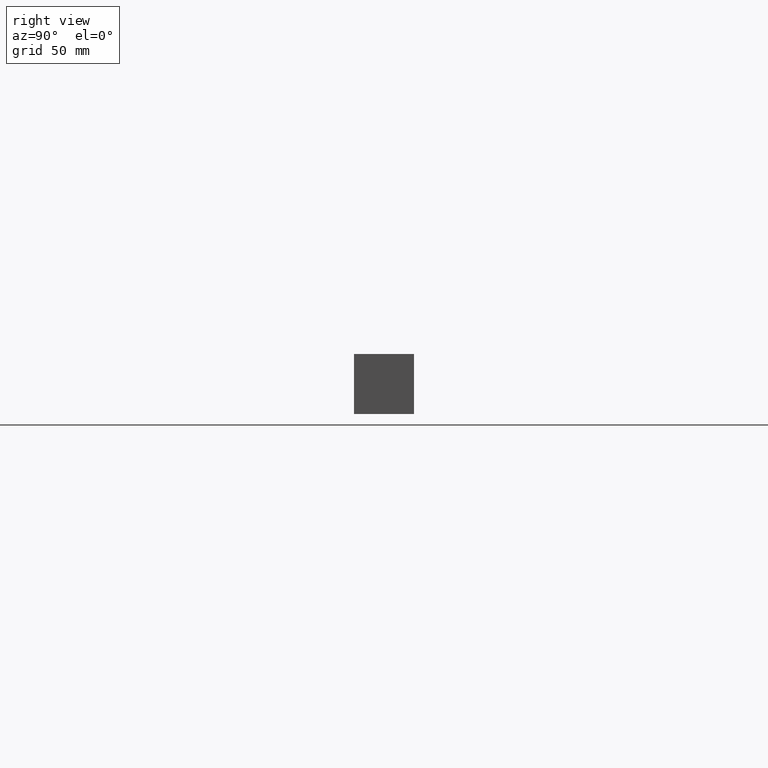
[diagram: clean part render]
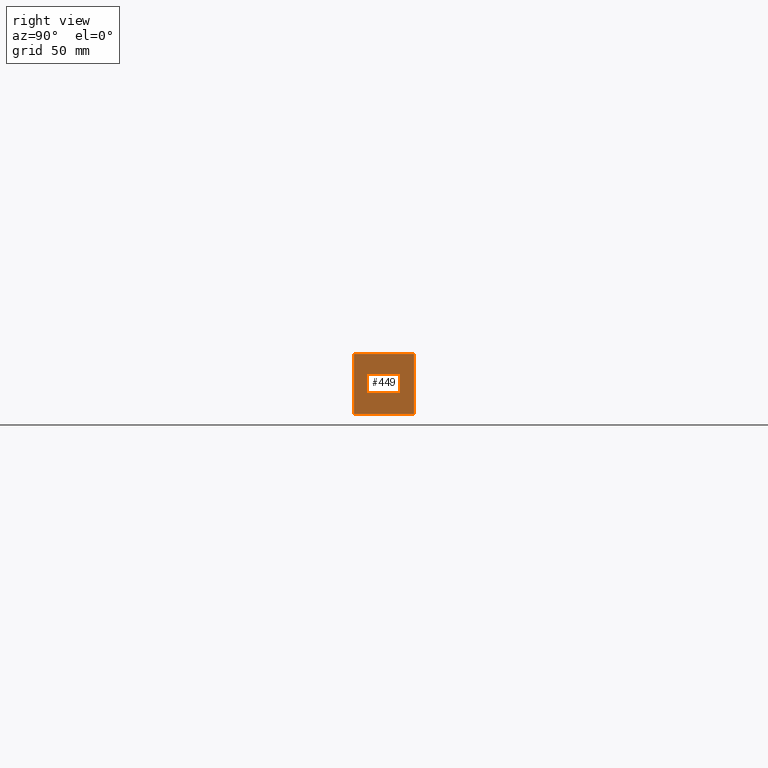
[diagram: same view with one face highlighted and labeled with its STEP entity id]
A machine part, right view. The second image highlights one B-rep face of the part: STEP entity #449.
In plain terms, the highlighted planar face has unit normal (-1, 0, 0).
Its self-contained STEP definition (entity closure, byte-faithful):
#3 = EDGE_LOOP ( 'NONE', ( #731, #1304, #203, #149 ) ) ;
#34 = DIRECTION ( 'NONE',  ( 0.0000000000000000000, 1.000000000000000000, 0.0000000000000000000 ) ) ;
#70 = CARTESIAN_POINT ( 'NONE',  ( 485.0000000000000000, 0.0000000000000000000, 0.0000000000000000000 ) ) ;
#96 = DIRECTION ( 'NONE',  ( 0.0000000000000000000, 0.0000000000000000000, 1.000000000000000000 ) ) ;
#138 = DIRECTION ( 'NONE',  ( -1.000000000000000000, 0.0000000000000000000, 0.0000000000000000000 ) ) ;
#149 = ORIENTED_EDGE ( 'NONE', *, *, #275, .T. ) ;
#192 = DIRECTION ( 'NONE',  ( 0.0000000000000000000, 1.000000000000000000, 0.0000000000000000000 ) ) ;
#203 = ORIENTED_EDGE ( 'NONE', *, *, #228, .F. ) ;
#228 = EDGE_CURVE ( 'NONE', #381, #1377, #1246, .T. ) ;
#242 = VERTEX_POINT ( 'NONE', #954 ) ;
#275 = EDGE_CURVE ( 'NONE', #381, #242, #1676, .T. ) ;
#304 = DIRECTION ( 'NONE',  ( -0.0000000000000000000, -0.0000000000000000000, -1.000000000000000000 ) ) ;
#353 = AXIS2_PLACEMENT_3D ( 'NONE', #771, #138, #96 ) ;
#354 = FACE_OUTER_BOUND ( 'NONE', #3, .T. ) ;
#381 = VERTEX_POINT ( 'NONE', #795 ) ;
#385 = CARTESIAN_POINT ( 'NONE',  ( 485.0000000000000000, 40.00000000000000000, 0.0000000000000000000 ) ) ;
#409 = CARTESIAN_POINT ( 'NONE',  ( 485.0000000000000000, 0.0000000000000000000, 40.00000000000000000 ) ) ;
#449 = ADVANCED_FACE ( 'NONE', ( #354 ), #764, .F. ) ;
#498 = LINE ( 'NONE', #70, #1544 ) ;
#579 = CARTESIAN_POINT ( 'NONE',  ( 485.0000000000000000, 40.00000000000000000, 40.00000000000000000 ) ) ;
#726 = VERTEX_POINT ( 'NONE', #385 ) ;
#731 = ORIENTED_EDGE ( 'NONE', *, *, #1616, .T. ) ;
#764 = PLANE ( 'NONE',  #353 ) ;
#771 = CARTESIAN_POINT ( 'NONE',  ( 485.0000000000000000, 0.0000000000000000000, 40.00000000000000000 ) ) ;
#795 = CARTESIAN_POINT ( 'NONE',  ( 485.0000000000000000, 0.0000000000000000000, 40.00000000000000000 ) ) ;
#838 = LINE ( 'NONE', #1083, #1444 ) ;
#939 = VECTOR ( 'NONE', #1347, 1000.000000000000000 ) ;
#954 = CARTESIAN_POINT ( 'NONE',  ( 485.0000000000000000, 0.0000000000000000000, 0.0000000000000000000 ) ) ;
#1083 = CARTESIAN_POINT ( 'NONE',  ( 485.0000000000000000, 40.00000000000000000, 40.00000000000000000 ) ) ;
#1132 = VECTOR ( 'NONE', #34, 1000.000000000000000 ) ;
#1236 = CARTESIAN_POINT ( 'NONE',  ( 485.0000000000000000, 0.0000000000000000000, 40.00000000000000000 ) ) ;
#1246 = LINE ( 'NONE', #409, #1132 ) ;
#1304 = ORIENTED_EDGE ( 'NONE', *, *, #1477, .F. ) ;
#1347 = DIRECTION ( 'NONE',  ( -0.0000000000000000000, -0.0000000000000000000, -1.000000000000000000 ) ) ;
#1377 = VERTEX_POINT ( 'NONE', #579 ) ;
#1444 = VECTOR ( 'NONE', #304, 1000.000000000000000 ) ;
#1477 = EDGE_CURVE ( 'NONE', #1377, #726, #838, .T. ) ;
#1544 = VECTOR ( 'NONE', #192, 1000.000000000000000 ) ;
#1616 = EDGE_CURVE ( 'NONE', #242, #726, #498, .T. ) ;
#1676 = LINE ( 'NONE', #1236, #939 ) ;